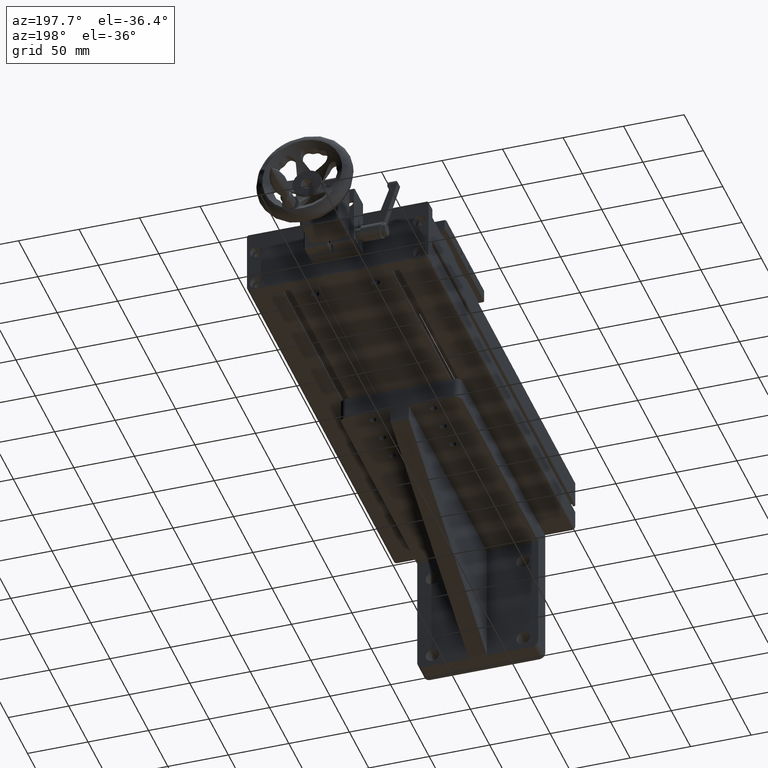
[diagram: clean part render]
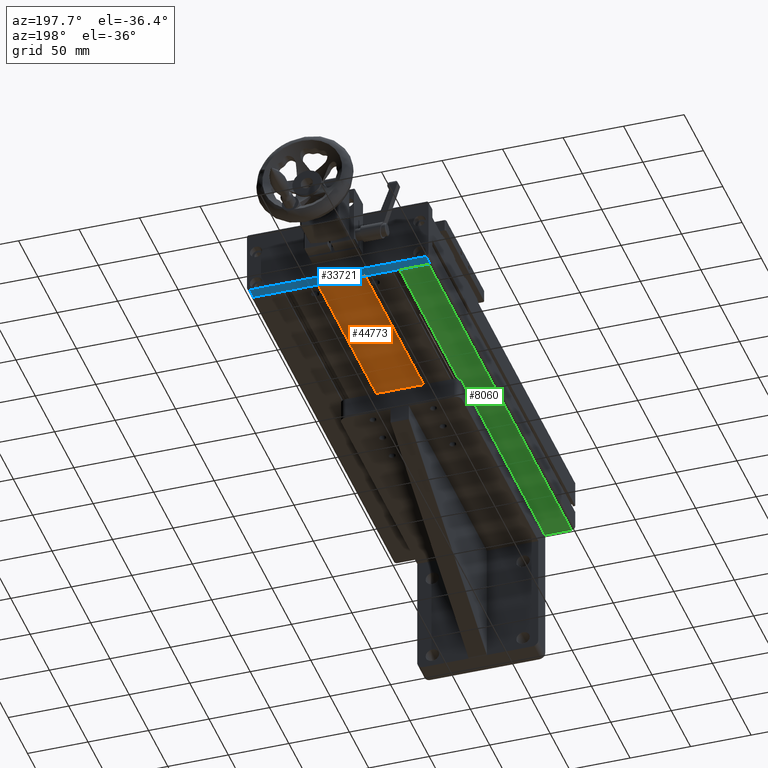
[diagram: same view with three faces highlighted in distinct colors, each labeled with its STEP entity id]
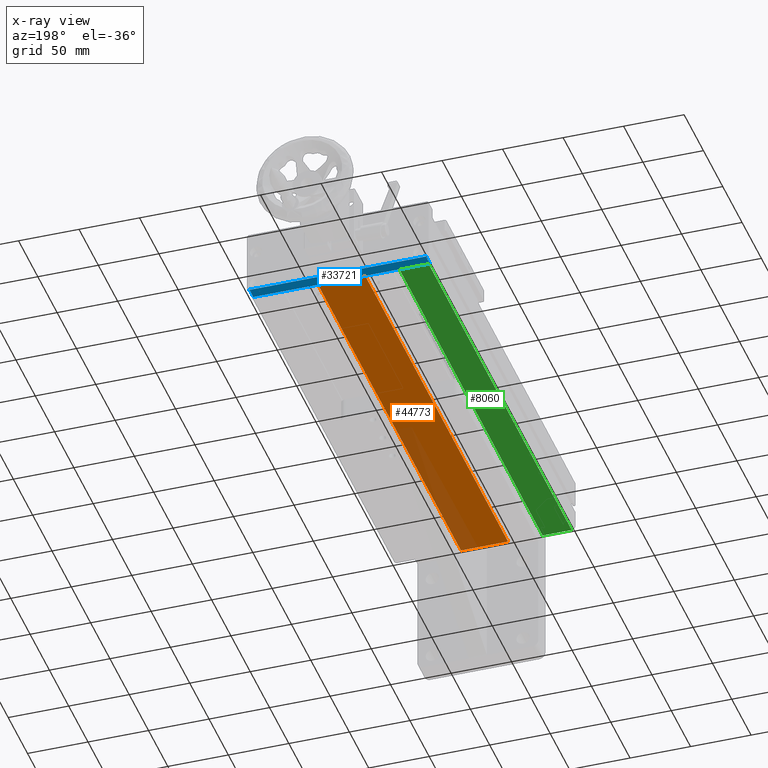
[diagram: x-ray of the same camera — body ghosted, the three highlighted faces saturated]
A machine part, auxiliary view with three faces highlighted in distinct colors.
The next image is the same camera in x-ray (body ghosted, the three faces saturated) — at least one of them is partly hidden behind the body in this view.
Their STEP definitions:

[orange] entity #44773 — the highlighted planar face has unit normal (-0, -0, -1).
#2244 = VECTOR ( 'NONE', #24666, 1000.000000000000000 ) ;
#3471 = LINE ( 'NONE', #38750, #2244 ) ;
#3625 = CARTESIAN_POINT ( 'NONE',  ( -3.579748409477723214, 255.7865302544020096, 60.49999999999933209 ) ) ;
#4067 = FACE_OUTER_BOUND ( 'NONE', #27731, .T. ) ;
#7517 = DIRECTION ( 'NONE',  ( -1.053011137364023571E-16, -1.000000000000000000, 3.821117613674764034E-17 ) ) ;
#7795 = LINE ( 'NONE', #3625, #26766 ) ;
#8270 = VERTEX_POINT ( 'NONE', #36476 ) ;
#12022 = AXIS2_PLACEMENT_3D ( 'NONE', #39820, #18262, #28781 ) ;
#12426 = CARTESIAN_POINT ( 'NONE',  ( -3.579748409477778726, -114.2134697455980046, 60.49999999999933209 ) ) ;
#13863 = DIRECTION ( 'NONE',  ( -1.053011137364023571E-16, -1.000000000000000000, 3.821117613674764034E-17 ) ) ;
#18008 = CARTESIAN_POINT ( 'NONE',  ( -42.57974840947592554, 255.7865302544020096, 60.50000000000110845 ) ) ;
#18033 = PLANE ( 'NONE',  #12022 ) ;
#18262 = DIRECTION ( 'NONE',  ( -1.031308999433431234E-14, -3.821117613674655566E-17, -1.000000000000000000 ) ) ;
#19937 = EDGE_CURVE ( 'NONE', #38269, #36746, #7795, .T. ) ;
#20025 = ORIENTED_EDGE ( 'NONE', *, *, #19937, .T. ) ;
#23633 = ORIENTED_EDGE ( 'NONE', *, *, #40687, .T. ) ;
#24666 = DIRECTION ( 'NONE',  ( 1.000000000000000000, 6.123233995742214106E-17, -1.031308999433431077E-14 ) ) ;
#24865 = VERTEX_POINT ( 'NONE', #45571 ) ;
#25302 = ORIENTED_EDGE ( 'NONE', *, *, #43631, .F. ) ;
#26766 = VECTOR ( 'NONE', #13863, 1000.000000000000000 ) ;
#27731 = EDGE_LOOP ( 'NONE', ( #25302, #42544, #23633, #20025 ) ) ;
#28781 = DIRECTION ( 'NONE',  ( -1.053011137364023571E-16, -1.000000000000000000, 3.821117613674764034E-17 ) ) ;
#33927 = LINE ( 'NONE', #12426, #36638 ) ;
#34843 = CARTESIAN_POINT ( 'NONE',  ( -3.579748409477778726, -114.2134697455980046, 60.49999999999933209 ) ) ;
#36476 = CARTESIAN_POINT ( 'NONE',  ( -42.57974840947598238, -114.2134697455980046, 60.50000000000110845 ) ) ;
#36638 = VECTOR ( 'NONE', #41459, 1000.000000000000000 ) ;
#36746 = VERTEX_POINT ( 'NONE', #34843 ) ;
#37705 = CARTESIAN_POINT ( 'NONE',  ( -3.579748409477723214, 255.7865302544020096, 60.49999999999933209 ) ) ;
#38269 = VERTEX_POINT ( 'NONE', #37705 ) ;
#38750 = CARTESIAN_POINT ( 'NONE',  ( -3.579748409477723214, 255.7865302544020096, 60.49999999999933209 ) ) ;
#39337 = LINE ( 'NONE', #18008, #44885 ) ;
#39820 = CARTESIAN_POINT ( 'NONE',  ( -3.579748409477723214, 255.7865302544020096, 60.49999999999933209 ) ) ;
#40687 = EDGE_CURVE ( 'NONE', #24865, #38269, #3471, .T. ) ;
#41087 = EDGE_CURVE ( 'NONE', #24865, #8270, #39337, .T. ) ;
#41459 = DIRECTION ( 'NONE',  ( 1.000000000000000000, 6.123233995742214106E-17, -1.031308999433431077E-14 ) ) ;
#42544 = ORIENTED_EDGE ( 'NONE', *, *, #41087, .F. ) ;
#43631 = EDGE_CURVE ( 'NONE', #8270, #36746, #33927, .T. ) ;
#44773 = ADVANCED_FACE ( 'NONE', ( #4067 ), #18033, .T. ) ;
#44885 = VECTOR ( 'NONE', #7517, 1000.000000000000000 ) ;
#45571 = CARTESIAN_POINT ( 'NONE',  ( -42.57974840947592554, 255.7865302544020096, 60.50000000000110845 ) ) ;

[blue] entity #33721 — the highlighted planar face has unit normal (0, -0, 1).
#167 = VERTEX_POINT ( 'NONE', #38702 ) ;
#3919 = AXIS2_PLACEMENT_3D ( 'NONE', #41189, #26417, #8667 ) ;
#4650 = LINE ( 'NONE', #18834, #20171 ) ;
#7993 = LINE ( 'NONE', #11707, #39605 ) ;
#8667 = DIRECTION ( 'NONE',  ( -1.000000000000000000, 6.306254620285522511E-16, 1.501141042483540842E-13 ) ) ;
#9125 = VERTEX_POINT ( 'NONE', #21833 ) ;
#11707 = CARTESIAN_POINT ( 'NONE',  ( -96.07974840947997563, 265.7865302544039992, 60.50000000001354294 ) ) ;
#12630 = PLANE ( 'NONE',  #3919 ) ;
#12856 = EDGE_LOOP ( 'NONE', ( #19048, #28374, #28721, #19520 ) ) ;
#13338 = LINE ( 'NONE', #19662, #16297 ) ;
#14977 = DIRECTION ( 'NONE',  ( 1.000000000000000000, -6.306254620285522511E-16, -1.501141042483540842E-13 ) ) ;
#15878 = EDGE_CURVE ( 'NONE', #9125, #167, #13338, .T. ) ;
#16074 = DIRECTION ( 'NONE',  ( 8.967242173589449006E-16, 1.000000000000000000, 3.823650429959166134E-16 ) ) ;
#16289 = CARTESIAN_POINT ( 'NONE',  ( 49.92025159051975436, 255.7865302544038855, 60.49999999999045031 ) ) ;
#16297 = VECTOR ( 'NONE', #30407, 1000.000000000000000 ) ;
#18834 = CARTESIAN_POINT ( 'NONE',  ( -96.07974840947997563, 255.7865302544039992, 60.50000000001354294 ) ) ;
#19048 = ORIENTED_EDGE ( 'NONE', *, *, #23356, .T. ) ;
#19520 = ORIENTED_EDGE ( 'NONE', *, *, #44192, .T. ) ;
#19662 = CARTESIAN_POINT ( 'NONE',  ( -96.07974840947997563, 255.7865302544039992, 60.50000000001354294 ) ) ;
#20171 = VECTOR ( 'NONE', #33116, 1000.000000000000000 ) ;
#21314 = VERTEX_POINT ( 'NONE', #21886 ) ;
#21664 = VECTOR ( 'NONE', #16074, 1000.000000000000000 ) ;
#21833 = CARTESIAN_POINT ( 'NONE',  ( -96.07974840947997563, 255.7865302544039992, 60.50000000001354294 ) ) ;
#21886 = CARTESIAN_POINT ( 'NONE',  ( 49.92025159051976857, 265.7865302544038855, 60.49999999999045031 ) ) ;
#23356 = EDGE_CURVE ( 'NONE', #25715, #21314, #7993, .T. ) ;
#25715 = VERTEX_POINT ( 'NONE', #34401 ) ;
#26417 = DIRECTION ( 'NONE',  ( 1.501141042483540842E-13, -2.402889340614472654E-16, 1.000000000000000000 ) ) ;
#27505 = LINE ( 'NONE', #16289, #21664 ) ;
#28374 = ORIENTED_EDGE ( 'NONE', *, *, #43862, .F. ) ;
#28721 = ORIENTED_EDGE ( 'NONE', *, *, #15878, .F. ) ;
#30407 = DIRECTION ( 'NONE',  ( 1.000000000000000000, -6.306254620285522511E-16, -1.501141042483540842E-13 ) ) ;
#33116 = DIRECTION ( 'NONE',  ( 8.967242173589449006E-16, 1.000000000000000000, 3.823650429959166134E-16 ) ) ;
#33721 = ADVANCED_FACE ( 'NONE', ( #34124 ), #12630, .F. ) ;
#34124 = FACE_OUTER_BOUND ( 'NONE', #12856, .T. ) ;
#34401 = CARTESIAN_POINT ( 'NONE',  ( -96.07974840947997563, 265.7865302544039992, 60.50000000001354294 ) ) ;
#38702 = CARTESIAN_POINT ( 'NONE',  ( 49.92025159051975436, 255.7865302544038855, 60.49999999999045031 ) ) ;
#39605 = VECTOR ( 'NONE', #14977, 1000.000000000000000 ) ;
#41189 = CARTESIAN_POINT ( 'NONE',  ( -96.07974840947997563, 255.7865302544039992, 60.50000000001354294 ) ) ;
#43862 = EDGE_CURVE ( 'NONE', #167, #21314, #27505, .T. ) ;
#44192 = EDGE_CURVE ( 'NONE', #9125, #25715, #4650, .T. ) ;

[green] entity #8060 — the highlighted planar face has unit normal (-0, -0, -1).
#1050 = DIRECTION ( 'NONE',  ( -1.053011137364023571E-16, -1.000000000000000000, 3.821117613674764034E-17 ) ) ;
#1169 = DIRECTION ( 'NONE',  ( 1.000000000000000000, 6.123233995742214106E-17, -1.031308999433431077E-14 ) ) ;
#1813 = ORIENTED_EDGE ( 'NONE', *, *, #35429, .T. ) ;
#5049 = VERTEX_POINT ( 'NONE', #16554 ) ;
#6233 = DIRECTION ( 'NONE',  ( -1.053011137364023571E-16, -1.000000000000000000, 3.821117613674764034E-17 ) ) ;
#6600 = CARTESIAN_POINT ( 'NONE',  ( -71.07974840947773032, 255.7865302544020096, 60.00000000000227374 ) ) ;
#7448 = CARTESIAN_POINT ( 'NONE',  ( -71.07974840947778716, -114.2134697455980046, 60.00000000000227374 ) ) ;
#7947 = EDGE_CURVE ( 'NONE', #8158, #28239, #22464, .T. ) ;
#8060 = ADVANCED_FACE ( 'NONE', ( #45255 ), #13341, .T. ) ;
#8158 = VERTEX_POINT ( 'NONE', #46161 ) ;
#10269 = LINE ( 'NONE', #42131, #38337 ) ;
#13341 = PLANE ( 'NONE',  #43889 ) ;
#16451 = EDGE_CURVE ( 'NONE', #5049, #28239, #36425, .T. ) ;
#16554 = CARTESIAN_POINT ( 'NONE',  ( -95.07974840947730399, -114.2134697455980046, 60.00000000000227374 ) ) ;
#16700 = CARTESIAN_POINT ( 'NONE',  ( -95.07974840947724715, 255.7865302544020096, 60.00000000000227374 ) ) ;
#20119 = DIRECTION ( 'NONE',  ( -1.031308999433431234E-14, -3.821117613674655566E-17, -1.000000000000000000 ) ) ;
#20511 = CARTESIAN_POINT ( 'NONE',  ( -95.07974840947724715, 255.7865302544020096, 60.00000000000227374 ) ) ;
#21282 = VERTEX_POINT ( 'NONE', #20511 ) ;
#22464 = LINE ( 'NONE', #22689, #38618 ) ;
#22689 = CARTESIAN_POINT ( 'NONE',  ( -71.07974840947773032, 255.7865302544020096, 60.00000000000227374 ) ) ;
#24273 = DIRECTION ( 'NONE',  ( 1.000000000000000000, 6.123233995742214106E-17, -1.031308999433431077E-14 ) ) ;
#28239 = VERTEX_POINT ( 'NONE', #42108 ) ;
#28247 = ORIENTED_EDGE ( 'NONE', *, *, #7947, .T. ) ;
#28479 = VECTOR ( 'NONE', #6233, 1000.000000000000000 ) ;
#29250 = EDGE_LOOP ( 'NONE', ( #33680, #30686, #1813, #28247 ) ) ;
#30686 = ORIENTED_EDGE ( 'NONE', *, *, #31135, .F. ) ;
#31135 = EDGE_CURVE ( 'NONE', #21282, #5049, #35189, .T. ) ;
#31331 = DIRECTION ( 'NONE',  ( -1.053011137364023571E-16, -1.000000000000000000, 3.821117613674764034E-17 ) ) ;
#33680 = ORIENTED_EDGE ( 'NONE', *, *, #16451, .F. ) ;
#35011 = VECTOR ( 'NONE', #1169, 1000.000000000000000 ) ;
#35189 = LINE ( 'NONE', #16700, #28479 ) ;
#35429 = EDGE_CURVE ( 'NONE', #21282, #8158, #10269, .T. ) ;
#36425 = LINE ( 'NONE', #7448, #35011 ) ;
#38337 = VECTOR ( 'NONE', #24273, 1000.000000000000000 ) ;
#38618 = VECTOR ( 'NONE', #1050, 1000.000000000000000 ) ;
#42108 = CARTESIAN_POINT ( 'NONE',  ( -71.07974840947778716, -114.2134697455980046, 60.00000000000227374 ) ) ;
#42131 = CARTESIAN_POINT ( 'NONE',  ( -71.07974840947773032, 255.7865302544020096, 60.00000000000227374 ) ) ;
#43889 = AXIS2_PLACEMENT_3D ( 'NONE', #6600, #20119, #31331 ) ;
#45255 = FACE_OUTER_BOUND ( 'NONE', #29250, .T. ) ;
#46161 = CARTESIAN_POINT ( 'NONE',  ( -71.07974840947773032, 255.7865302544020096, 60.00000000000227374 ) ) ;